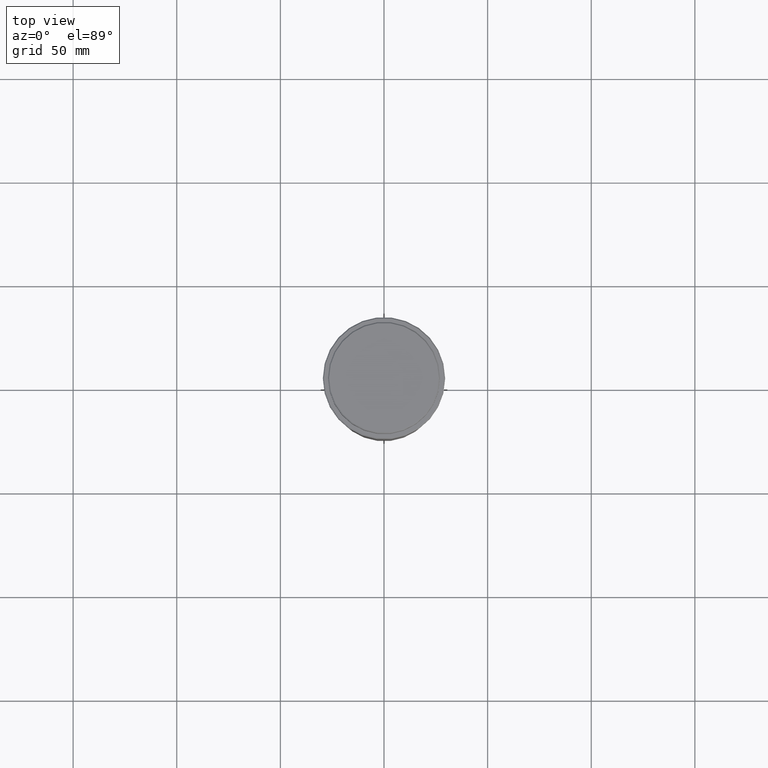
[diagram: clean part render]
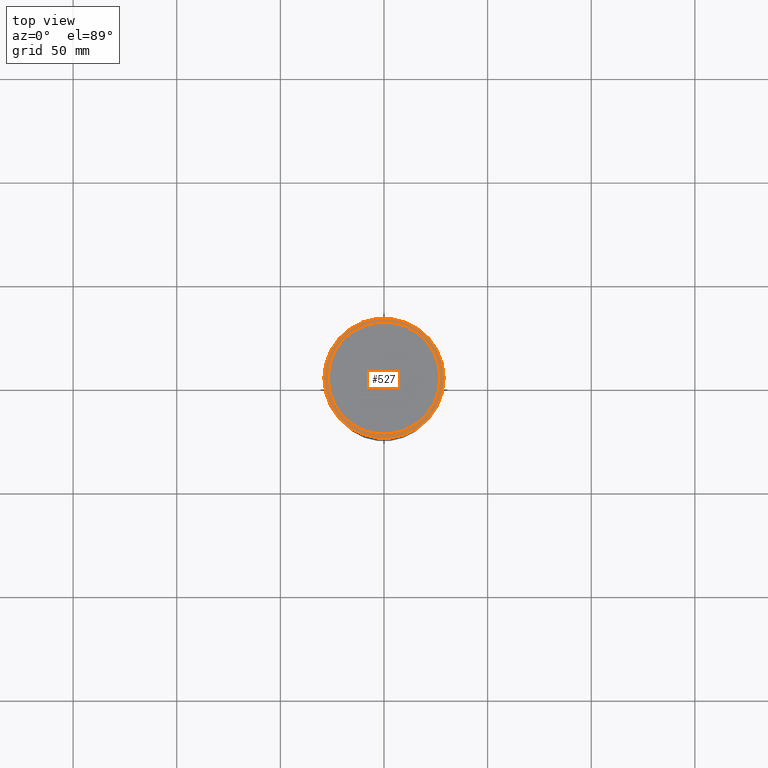
[diagram: same view with one face highlighted and labeled with its STEP entity id]
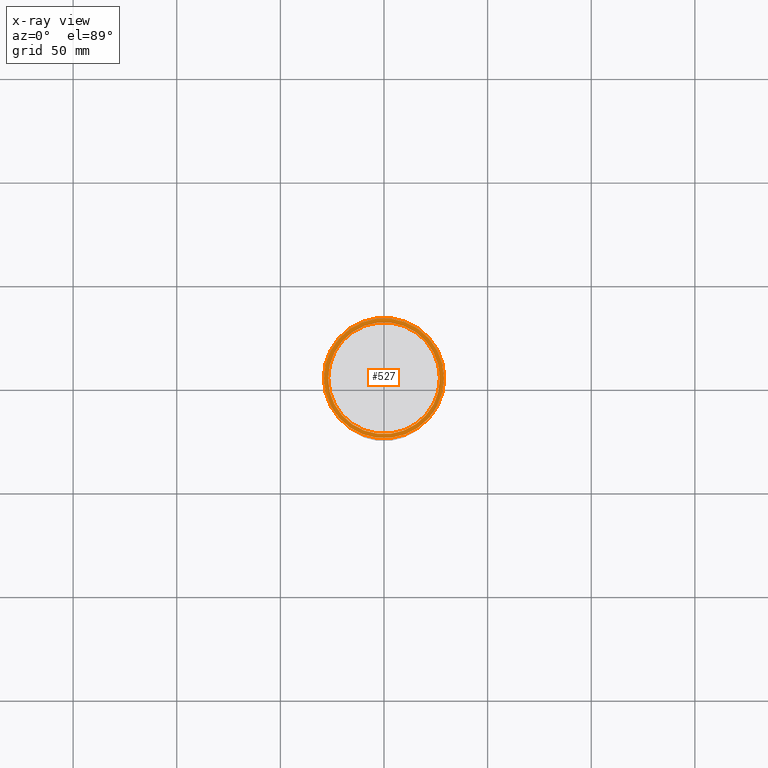
[diagram: x-ray of the same camera — body ghosted, the highlighted face saturated]
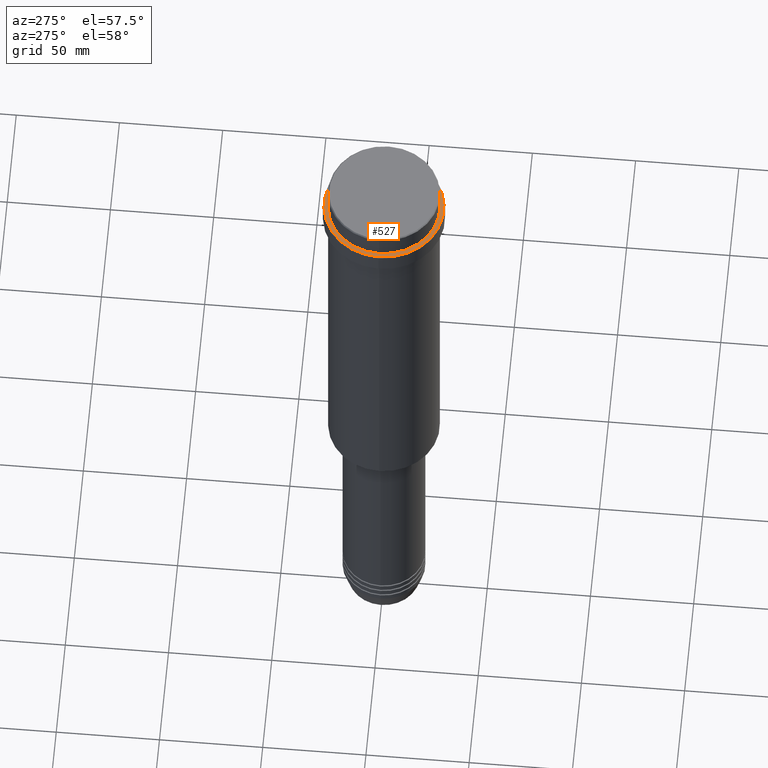
[diagram: same view with one face highlighted and labeled with its STEP entity id]
A machine part, top view. The second image highlights one B-rep face of the part: STEP entity #527.
The next image is the same camera in x-ray: the body ghosted, the highlighted face saturated — about 0% of this face is hidden behind the body in this view.
A second angle (auxiliary view) of the same face is appended — the face is thin or edge-on in the first view.
In plain terms, the highlighted planar face has unit normal (0, -0, 1).
Its self-contained STEP definition (entity closure, byte-faithful):
#6 = EDGE_LOOP ( 'NONE', ( #948, #171 ) ) ;
#71 = CARTESIAN_POINT ( 'NONE',  ( 26.99999999999999645, 0.000000000000000000, -12.00000000000000355 ) ) ;
#73 = VERTEX_POINT ( 'NONE', #439 ) ;
#99 = ORIENTED_EDGE ( 'NONE', *, *, #746, .T. ) ;
#135 = DIRECTION ( 'NONE',  ( 1.000000000000000000, 0.000000000000000000, 0.000000000000000000 ) ) ;
#137 = EDGE_CURVE ( 'NONE', #1157, #1282, #878, .T. ) ;
#171 = ORIENTED_EDGE ( 'NONE', *, *, #1163, .T. ) ;
#185 = CIRCLE ( 'NONE', #355, 26.99999999999999645 ) ;
#193 = AXIS2_PLACEMENT_3D ( 'NONE', #1136, #710, #487 ) ;
#245 = CIRCLE ( 'NONE', #451, 29.00000000000002487 ) ;
#263 = AXIS2_PLACEMENT_3D ( 'NONE', #1341, #1226, #773 ) ;
#318 = DIRECTION ( 'NONE',  ( 0.000000000000000000, 0.000000000000000000, -1.000000000000000000 ) ) ;
#348 = CARTESIAN_POINT ( 'NONE',  ( 0.000000000000000000, 26.49999999999999645, -12.00000000000000355 ) ) ;
#355 = AXIS2_PLACEMENT_3D ( 'NONE', #934, #318, #852 ) ;
#361 = DIRECTION ( 'NONE',  ( 1.000000000000000000, 0.000000000000000000, 0.000000000000000000 ) ) ;
#439 = CARTESIAN_POINT ( 'NONE',  ( -29.00000000000002487, 0.000000000000000000, -12.00000000000000355 ) ) ;
#451 = AXIS2_PLACEMENT_3D ( 'NONE', #662, #1097, #361 ) ;
#472 = AXIS2_PLACEMENT_3D ( 'NONE', #348, #1103, #135 ) ;
#479 = EDGE_LOOP ( 'NONE', ( #99, #1285 ) ) ;
#487 = DIRECTION ( 'NONE',  ( 1.000000000000000000, 0.000000000000000000, 0.000000000000000000 ) ) ;
#527 = ADVANCED_FACE ( 'NONE', ( #1223, #1112 ), #668, .T. ) ;
#652 = EDGE_CURVE ( 'NONE', #755, #73, #245, .T. ) ;
#662 = CARTESIAN_POINT ( 'NONE',  ( 0.000000000000000000, 0.000000000000000000, -12.00000000000000355 ) ) ;
#668 = PLANE ( 'NONE',  #472 ) ;
#697 = CIRCLE ( 'NONE', #193, 29.00000000000002487 ) ;
#710 = DIRECTION ( 'NONE',  ( -0.000000000000000000, -0.000000000000000000, 1.000000000000000000 ) ) ;
#746 = EDGE_CURVE ( 'NONE', #73, #755, #697, .T. ) ;
#755 = VERTEX_POINT ( 'NONE', #933 ) ;
#773 = DIRECTION ( 'NONE',  ( 1.000000000000000000, 0.000000000000000000, 0.000000000000000000 ) ) ;
#852 = DIRECTION ( 'NONE',  ( 1.000000000000000000, 0.000000000000000000, 0.000000000000000000 ) ) ;
#878 = CIRCLE ( 'NONE', #263, 26.99999999999999645 ) ;
#933 = CARTESIAN_POINT ( 'NONE',  ( 29.00000000000002487, 3.582091887506009394E-15, -12.00000000000000355 ) ) ;
#934 = CARTESIAN_POINT ( 'NONE',  ( 0.000000000000000000, 0.000000000000000000, -12.00000000000000355 ) ) ;
#948 = ORIENTED_EDGE ( 'NONE', *, *, #137, .T. ) ;
#1097 = DIRECTION ( 'NONE',  ( -0.000000000000000000, -0.000000000000000000, 1.000000000000000000 ) ) ;
#1103 = DIRECTION ( 'NONE',  ( 0.000000000000000000, -0.000000000000000000, 1.000000000000000000 ) ) ;
#1112 = FACE_BOUND ( 'NONE', #6, .T. ) ;
#1136 = CARTESIAN_POINT ( 'NONE',  ( 0.000000000000000000, 0.000000000000000000, -12.00000000000000355 ) ) ;
#1157 = VERTEX_POINT ( 'NONE', #71 ) ;
#1163 = EDGE_CURVE ( 'NONE', #1282, #1157, #185, .T. ) ;
#1184 = CARTESIAN_POINT ( 'NONE',  ( -26.99999999999999645, 3.306546357697853339E-15, -12.00000000000000355 ) ) ;
#1223 = FACE_OUTER_BOUND ( 'NONE', #479, .T. ) ;
#1226 = DIRECTION ( 'NONE',  ( 0.000000000000000000, 0.000000000000000000, -1.000000000000000000 ) ) ;
#1282 = VERTEX_POINT ( 'NONE', #1184 ) ;
#1285 = ORIENTED_EDGE ( 'NONE', *, *, #652, .T. ) ;
#1341 = CARTESIAN_POINT ( 'NONE',  ( 0.000000000000000000, 0.000000000000000000, -12.00000000000000355 ) ) ;